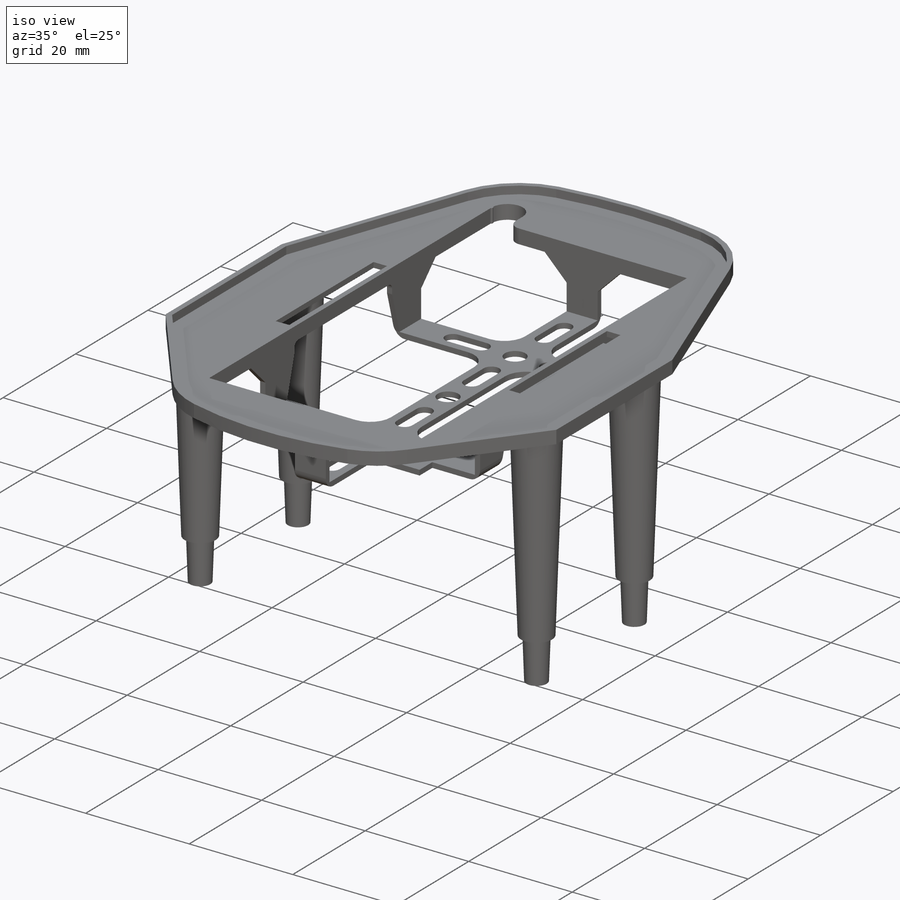
[diagram: iso view]
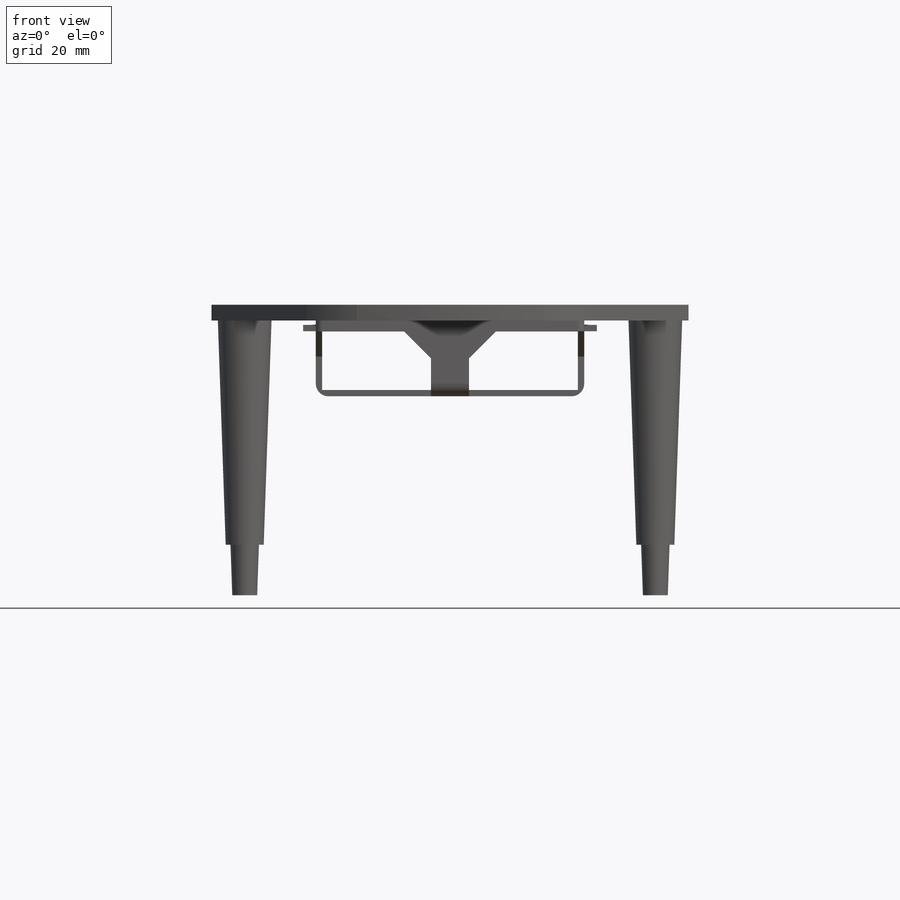
[diagram: front view]
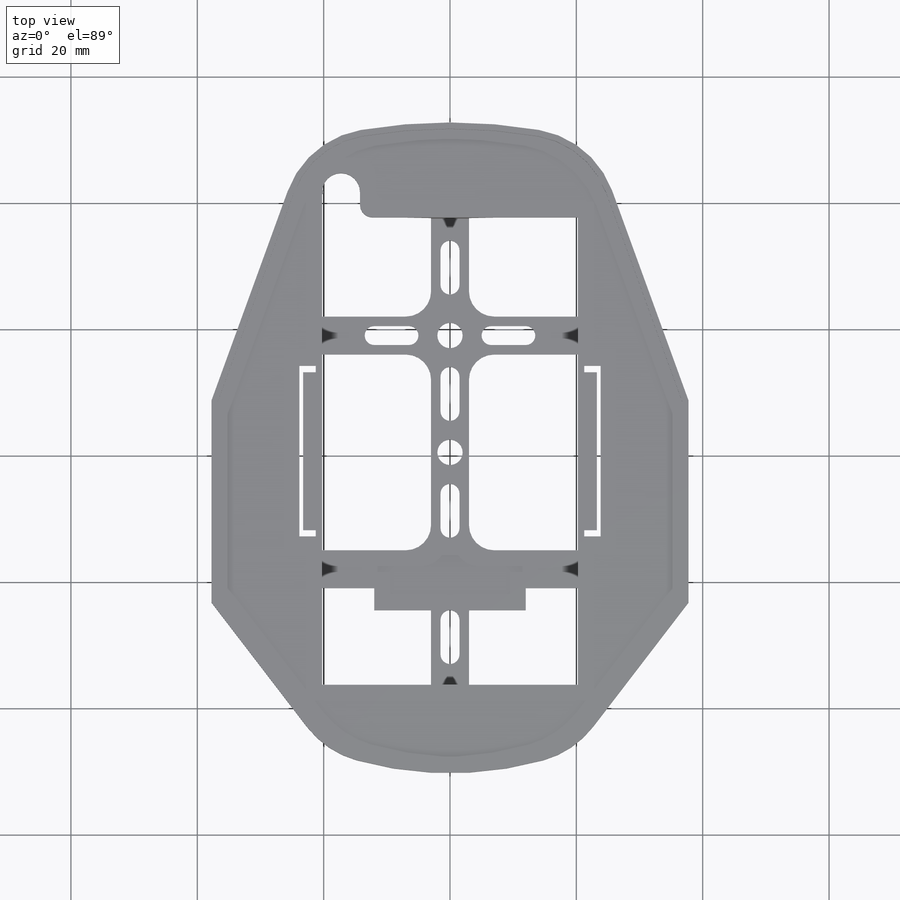
[diagram: top view]
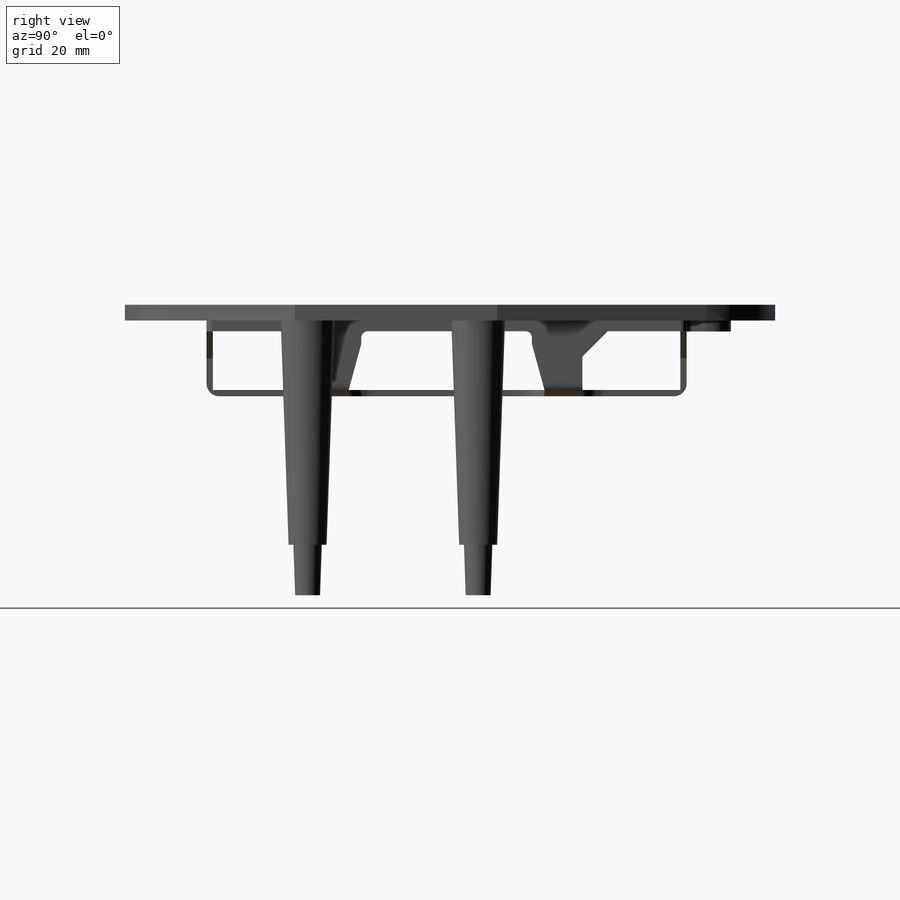
[diagram: right view]
SOLIDWORKS PART (.sldprt)
format: sldprt  version: not decoded by parser v0  size: 772,608 bytes
history: native  units: mm
features: sketch x17, cut_extrude x8, extrude x7, plane x3, material x1, shell x1, hole x1, thread x1, pattern_linear x1, fillet x1, mirror x1 (+8 scaffold rows collapsed)
feature tree (50):
  scaffold x8  (default folders/planes/origin — collapsed)
  material  "PA Type 6"
  plane  "Plan de face"
  plane  "Plan de dessus"
  plane  "Plan de droite"
  sketch  "Esquisse1"  dims[c1.D1=168.0mm c1.D2=55.0mm c1.D9=15.0mm c2.D2=~113.018796mm c2.D3=37.5mm c2.D4=29.0mm c3.D3=4.0mm c3.D4=32.0mm c3.D5=37.75mm c3.D6=~32.890813mm c4.D6=37.5deg c4.D7=~26.986664mm c5.D7=20.0deg c5.D8=32.0mm c5.D10=8.0mm c5.D11=104.0mm]
  extrude  "Extrusion1"  Depth=2.5mm
  sketch  "Esquisse2"  dims[D5=4.0mm D7=1.0mm D1=76.0mm D2=38.0mm D3=42.5mm D4=21.25mm D6=3.0mm]
  extrude  "Extrusion2"  Depth=12mm
  shell  "Coque3"  Thickness=1mm
  sketch  "Esquisse3"  dims[D1=8.5mm D2=32.5mm D3=22.0mm]
  extrude  "Extrusion3"  Depth=35.5mm
  sketch  "Esquisse4"  dims[D1=4.5mm]
  extrude  "Extrusion4"  Depth=8mm
  hole  "Trou taraudé M21"  Diameter=1.6mm Depth=6mm
  sketch  "Esquisse16"
  sketch  "Esquisse15"  dims[hole-wizard template sketch: 47 standard entries collapsed; hole parameters kept: c15.Profondeur du trou pour taraudage=6.0mm c15.D3=~14.816244mm c15.Angle de pointe=118.0deg]
  thread  "Filetage de perçage1"  Diameter=4mm  [1 undecoded]
  pattern_linear  "Répétition linéaire1"  Count1=2 Count2=1 Spacing1=27mm Spacing2=10mm
  sketch  "Esquisse5"  dims[D1=2.6mm D2=1.0mm D3=27.0mm D4=13.5mm]
  cut_extrude  "Extrusion5"  [1 undecoded]
  sketch  "Esquisse6"  dims[c1.D11=1.0mm c1.D1=13.5mm c1.D2=15.0mm c1.D3=2.0mm c1.D4=1.7mm c1.D5=1.0mm c1.D6=1.0mm c1.D7=1.0mm c1.D8=~12.431619mm c2.D6=6.0mm c2.D8=9.3mm c3.D6=1.0mm c3.D8=6.0mm c3.D9=~3.075066mm c4.D9=135.0deg c4.D10=4.0mm c4.D3=13.5mm c4.D2=31.0mm]
  cut_extrude  "Extrusion9"  Depth=47mm
  sketch  "Esquisse7"  dims[c1.D1=1.75mm c1.D2=~1.897204mm c2.D2=~193.626995deg c3.D2=~1.897204mm c4.D2=135.0deg c4.D3=3.0mm c4.D4=1.0mm c4.D5=6.0mm]
  cut_extrude  "Extrusion8"  Depth=97mm
  sketch  "Esquisse9"
  cut_extrude  "Extrusion11"  Depth=1mm
  sketch  "Esquisse10"  dims[D5=4.0mm D6=4.0mm D8=1.5mm D11=4.0mm D13=1.5mm D16=4.0mm D17=1.5mm D1=20.0mm D2=1.0mm D3=3.0mm D4=21.5mm D7=18.5mm D9=5.5mm D10=6.5mm D12=6.0mm D14=5.5mm D15=10.0mm D18=5.5mm D19=9.25mm D20=26.5mm]
  cut_extrude  "Extrusion12"  Depth=1mm
  sketch  "Esquisse11"
  cut_extrude  "Extrusion13"  Depth=10mm
  sketch  "Esquisse12"
  cut_extrude  "Extrusion14"  Depth=1mm
  sketch  "Esquisse13"  dims[D1=1.0mm]
  extrude  "Extrusion17"  Depth=2mm
  fillet  "Congé1"  Radius=2mm
  sketch  "Esquisse14"  dims[D1=9.5mm D2=12.0mm D3=9.5mm D4=12.0mm]
  extrude  "Extrusion18"  Depth=1mm
  mirror  "Symétrie1"
  sketch  "Esquisse17"  dims[D1=8.0mm D2=23.0mm D3=11.5mm D4=0.75mm]
  cut_extrude  "Extrusion19"  Depth=0.2mm
  sketch  "Esquisse19"  dims[D1=0.7mm]
  extrude  "Extrusion21"  [1 undecoded]
decode coverage: 31 of 38 modeling features carry decoded parameters
note: ~ marks probable driven/reference dimensions
note: 3 parameter values undecoded
note: suppression state not decoded; provenance and decode notes live in map.json
